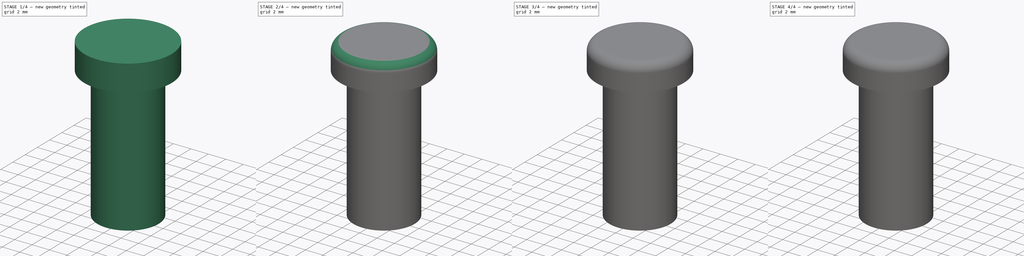
[diagram: build sequence overview — one tinted view per stage of 4, left to right]
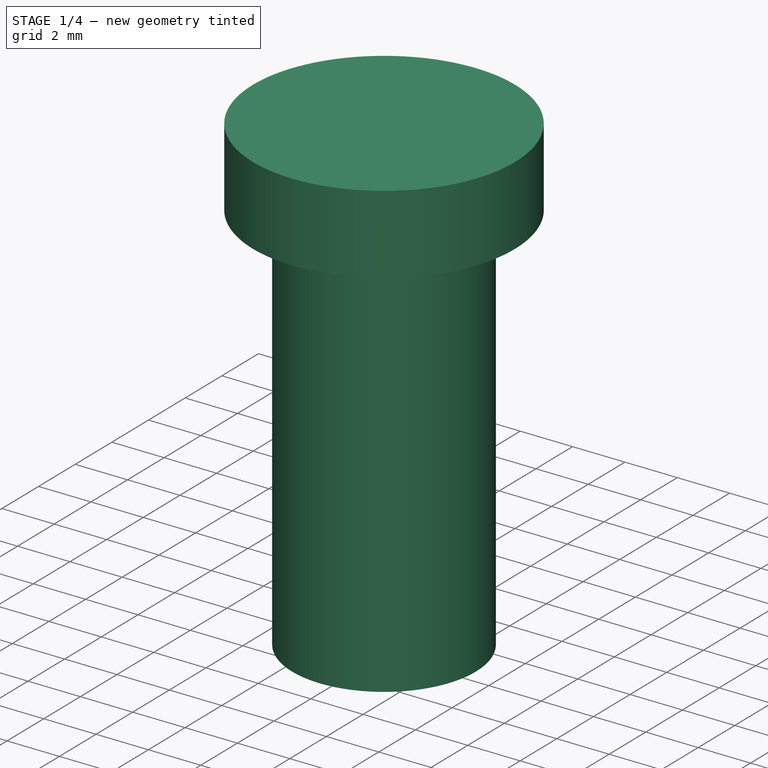
[diagram: stage 1 of 4 — iso view after this stage's code; geometry added in this stage tinted green]
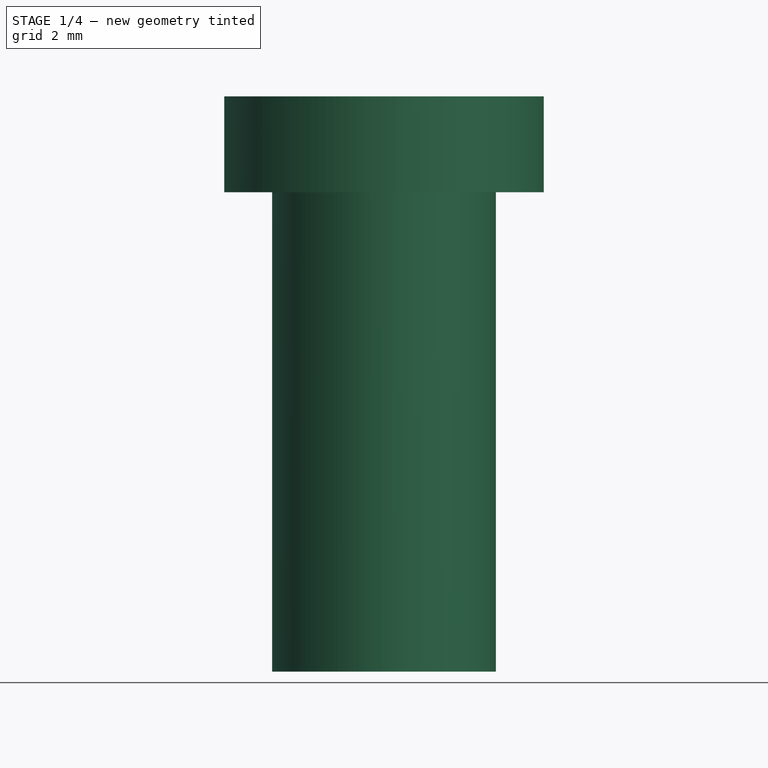
[diagram: stage 1 of 4 — front view after this stage's code; geometry added in this stage tinted green]
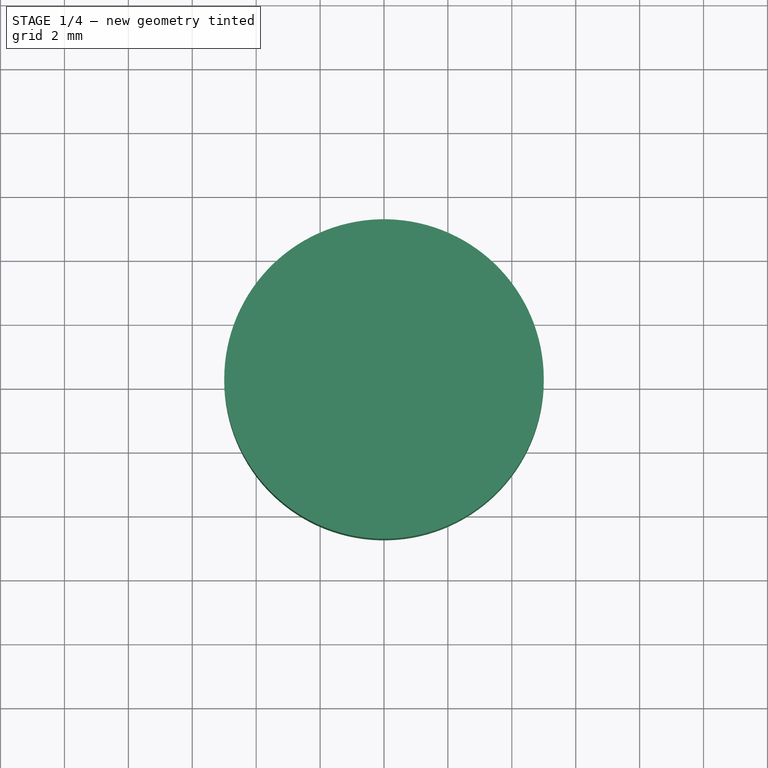
[diagram: stage 1 of 4 — top view after this stage's code; geometry added in this stage tinted green]
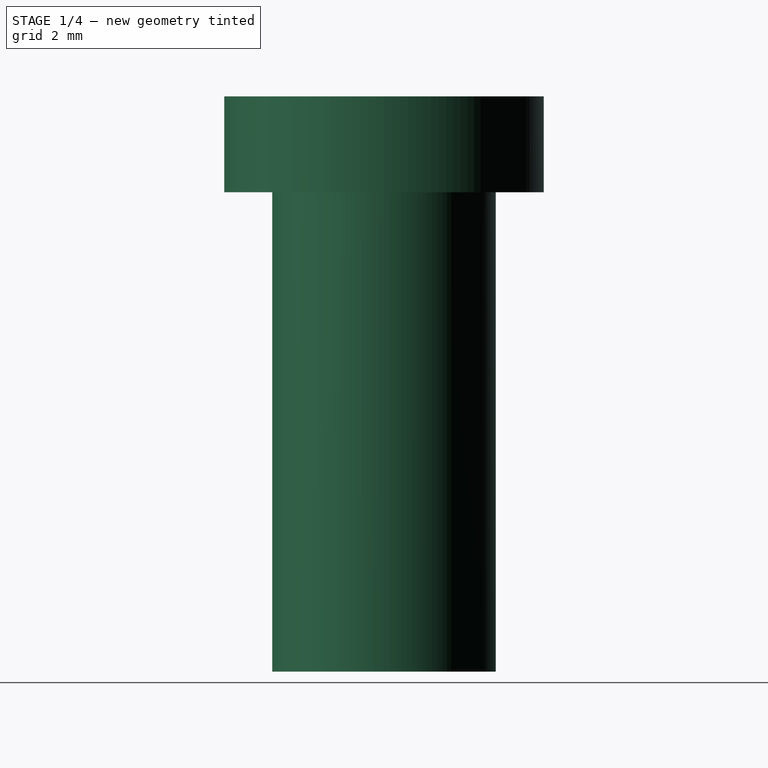
[diagram: stage 1 of 4 — right view after this stage's code; geometry added in this stage tinted green]
FCSTD DOCUMENT  (FreeCAD 0.18R4 (GitTag))
Label: Button
License: All rights reserved
LicenseURL: http://en.wikipedia.org/wiki/All_rights_reserved
objects: Sketcher::SketchObject×8, PartDesign::Body×5, PartDesign::Pocket×4, PartDesign::FeatureBase×4, PartDesign::Pad×2, PartDesign::Fillet×1, PartDesign::PolarPattern×1, Image::ImagePlane×1
note: 31 computed .brp shape members not serialized (recipe doc carries the construction recipe); baked Part::Feature solids carry a one-line shape summary decoded from their .brp

FEATURE [Sketcher::SketchObject] Sketch
  MapMode = 5
  Support = -> [XY_Plane]
  sketch-geometry (1):
    g0: Circle CenterX=0 CenterY=0 CenterZ=0 NormalX=0 NormalY=0 NormalZ=1 AngleXU=0 Radius=3.5
  constraints (1):
    c: Coincident(g0,g-1)
FEATURE [PartDesign::Pad] Pad
  Length = 15
  Length2 = 100
  Profile = -> Sketch
  Type = 0
FEATURE [Sketcher::SketchObject] Sketch001
  MapMode = 5
  Placement = pos=(0,0,0) rot=(1,0,0;3.14159rad)
  Support = -> [Pad]
  sketch-geometry (1):
    g0: Circle CenterX=0 CenterY=0 CenterZ=0 NormalX=0 NormalY=0 NormalZ=1 AngleXU=0 Radius=1.8
  constraints (1):
    c: Coincident(g0,g-1)
FEATURE [PartDesign::Pocket] Pocket
  BaseFeature = -> Pad
  Length = 3
  Length2 = 100
  Profile = -> Sketch001
  Type = 0
FEATURE [Sketcher::SketchObject] Sketch002
  MapMode = 5
  Placement = pos=(0,0,15) rot=(0,0,1;0rad)
  Support = -> [Pocket]
  sketch-geometry (1):
    g0: Circle CenterX=0 CenterY=0 CenterZ=0 NormalX=0 NormalY=0 NormalZ=1 AngleXU=0 Radius=5
  constraints (1):
    c: PointOnObject(g0,g-2)
FEATURE [PartDesign::Pad] Pad001
  BaseFeature = -> Pocket
  Length = 3
  Length2 = 100
  Profile = -> Sketch002
  Type = 0
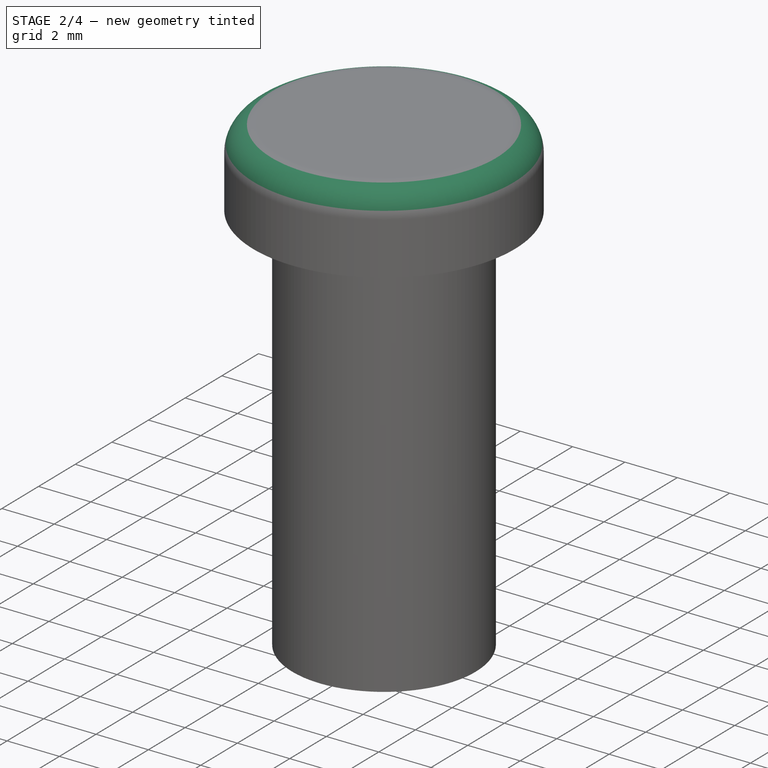
[diagram: stage 2 of 4 — iso view after this stage's code; geometry added in this stage tinted green]
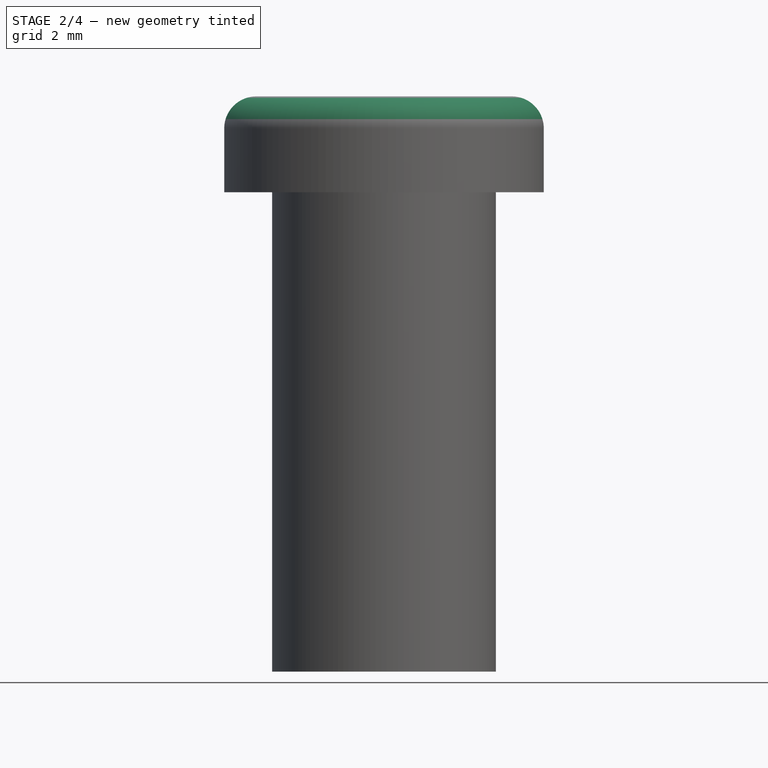
[diagram: stage 2 of 4 — front view after this stage's code; geometry added in this stage tinted green]
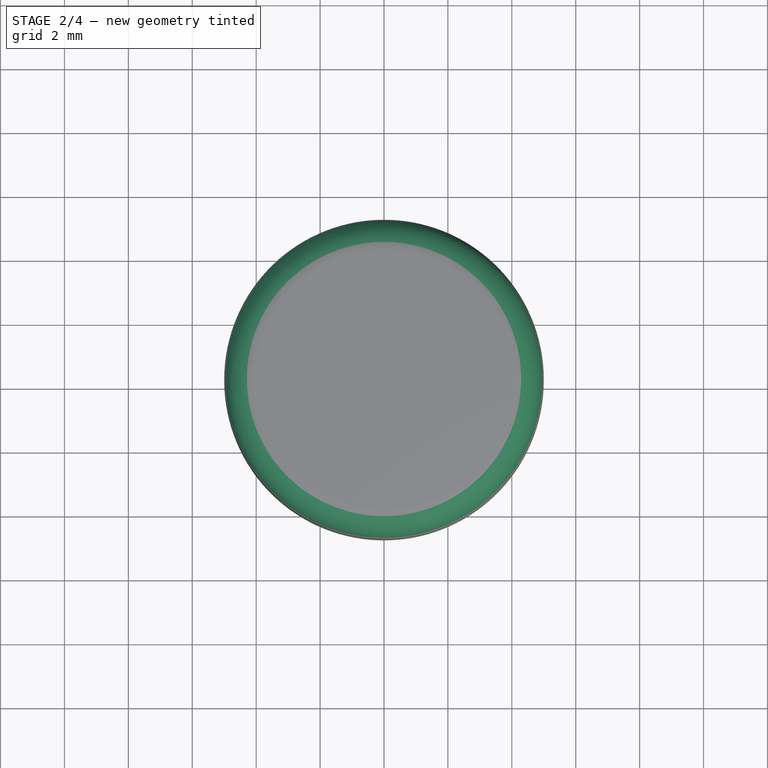
[diagram: stage 2 of 4 — top view after this stage's code; geometry added in this stage tinted green]
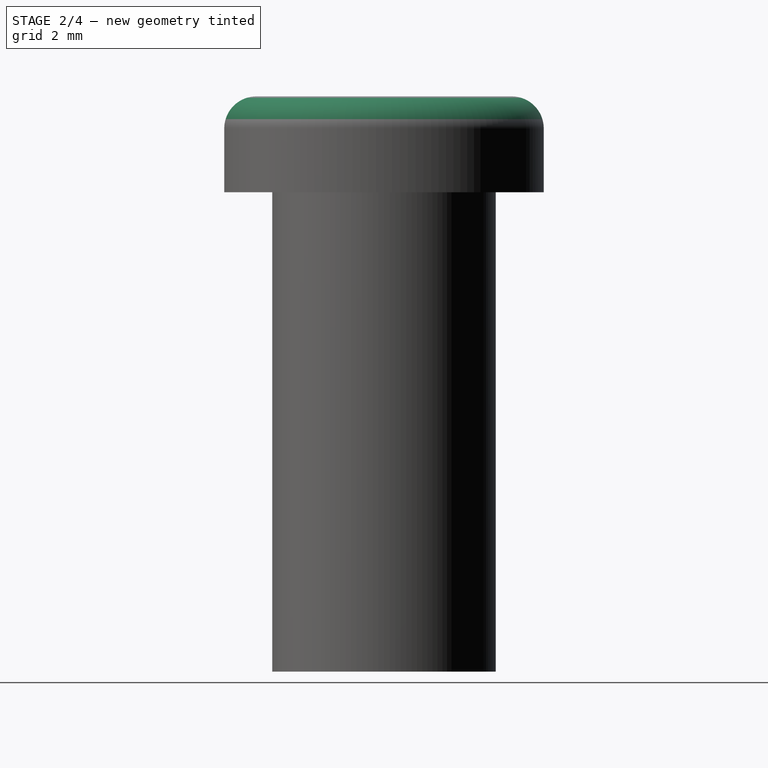
[diagram: stage 2 of 4 — right view after this stage's code; geometry added in this stage tinted green]
FEATURE [PartDesign::Fillet] Fillet
  Base = -> Pad001 [Edge3]
  BaseFeature = -> Pad001
  Radius = 1
FEATURE [PartDesign::Body] Body001  label="TlacitkoMute"
  BaseFeature = -> Body
  Group = -> [Clone,Sketch005,Pocket003]
  Origin = -> Origin001
  Placement = pos=(15,0,0) rot=(0,0,1;0rad)
  Tip = -> Pocket003
FEATURE [PartDesign::FeatureBase] Clone002
  BaseFeature = -> Body
FEATURE [PartDesign::Body] Body003  label="TlacitkoPause"
  BaseFeature = -> Body
  Group = -> [Clone002]
  Origin = -> Origin003
  Placement = pos=(-20,0,0) rot=(0,0,1;0rad)
  Tip = -> Clone002
FEATURE [PartDesign::FeatureBase] Clone003
  BaseFeature = -> Body
FEATURE [Image::ImagePlane] ImagePlane
  Placement = pos=(-35,0.4,18) rot=(0,0,1;0rad)
  XSize = 6
  YSize = 6
FEATURE [Sketcher::SketchObject] Sketch007
  MapMode = 5
  Placement = pos=(0,0,18) rot=(0,0,1;0rad)
  Support = -> [Clone003]
  sketch-geometry (12):
    g0: LineSegment StartX=-2.2 StartY=-2.6 StartZ=0 EndX=-0.6 EndY=-2.6 EndZ=0
    g1: LineSegment StartX=-0.6 StartY=-2.6 StartZ=0 EndX=-0.6 EndY=-1 EndZ=0
    g2: LineSegment StartX=-0.6 StartY=-1 StartZ=0 EndX=0.6 EndY=-1 EndZ=0
    g3: LineSegment StartX=0.6 StartY=-1 StartZ=0 EndX=0.6 EndY=-2.6 EndZ=0
    g4: LineSegment StartX=0.6 StartY=-2.6 StartZ=0 EndX=2.2 EndY=-2.6 EndZ=0
    g5: LineSegment StartX=2.2 StartY=-2.6 StartZ=0 EndX=2.2 EndY=0.2 EndZ=0
    g6: LineSegment StartX=2.2 StartY=0.2 StartZ=0 EndX=3.2 EndY=0.2 EndZ=0
    g7: LineSegment StartX=3.2 StartY=0.2 StartZ=0 EndX=0 EndY=3.4 EndZ=0
    g8: LineSegment StartX=-0.6 StartY=-2.6 StartZ=0 EndX=-2.2 EndY=-2.6 EndZ=0
    g9: LineSegment StartX=-2.2 StartY=-2.6 StartZ=0 EndX=-2.2 EndY=0.2 EndZ=0
    g10: LineSegment StartX=-2.2 StartY=0.2 StartZ=0 EndX=-3.2 EndY=0.2 EndZ=0
    g11: LineSegment StartX=-3.2 StartY=0.2 StartZ=0 EndX=0 EndY=3.4 EndZ=0
  constraints (20):
    c: Horizontal(g0)
    c: Coincident(g0,g1)
    c: Vertical(g1)
    c: Coincident(g1,g2)
    c: Horizontal(g2)
    c: Coincident(g2,g3)
    c: Vertical(g3)
    c: Coincident(g3,g4)
    c: Horizontal(g4)
    c: Coincident(g4,g5)
    c: Vertical(g5)
    c: Coincident(g5,g6)
    c: Horizontal(g6)
    c: Coincident(g6,g7)
    c: Horizontal(g8)
    c: Coincident(g8,g9)
    c: Vertical(g9)
    c: Coincident(g9,g10)
    c: Horizontal(g10)
    c: Coincident(g10,g11)
FEATURE [Sketcher::SketchObject] Sketch006
  MapMode = 5
  Placement = pos=(0,0,18) rot=(0,0,1;0rad)
  Support = -> [Clone003]
FEATURE [PartDesign::Body] Body004  label="TlacitkoHome"
  BaseFeature = -> Body
  Group = -> [Clone003,Sketch006,Sketch007]
  Origin = -> Origin004
  Placement = pos=(-35,0,0) rot=(0,0,1;0rad)
  Tip = -> Clone003
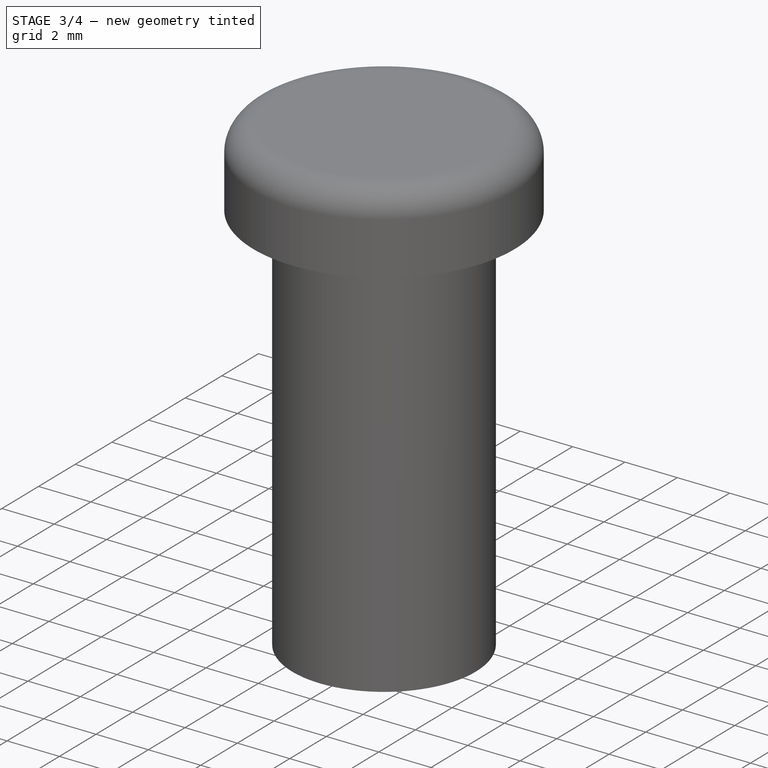
[diagram: stage 3 of 4 — iso view after this stage's code; geometry added in this stage tinted green]
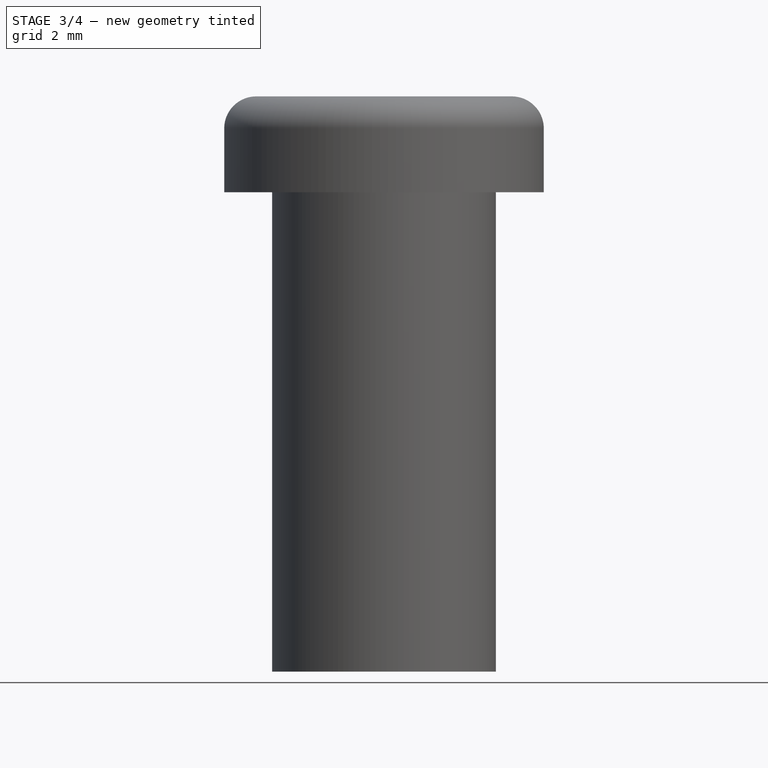
[diagram: stage 3 of 4 — front view after this stage's code; geometry added in this stage tinted green]
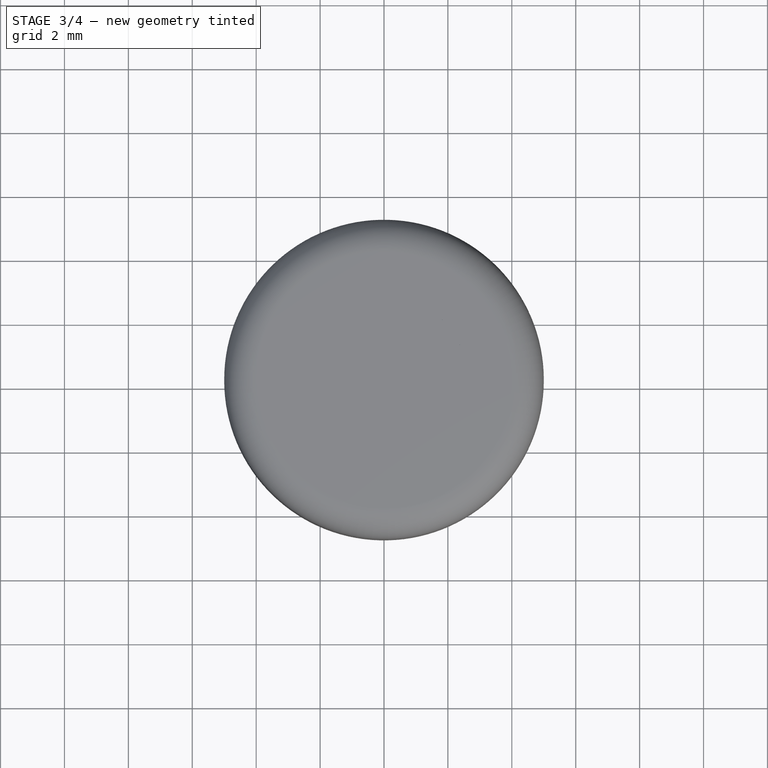
[diagram: stage 3 of 4 — top view after this stage's code; geometry added in this stage tinted green]
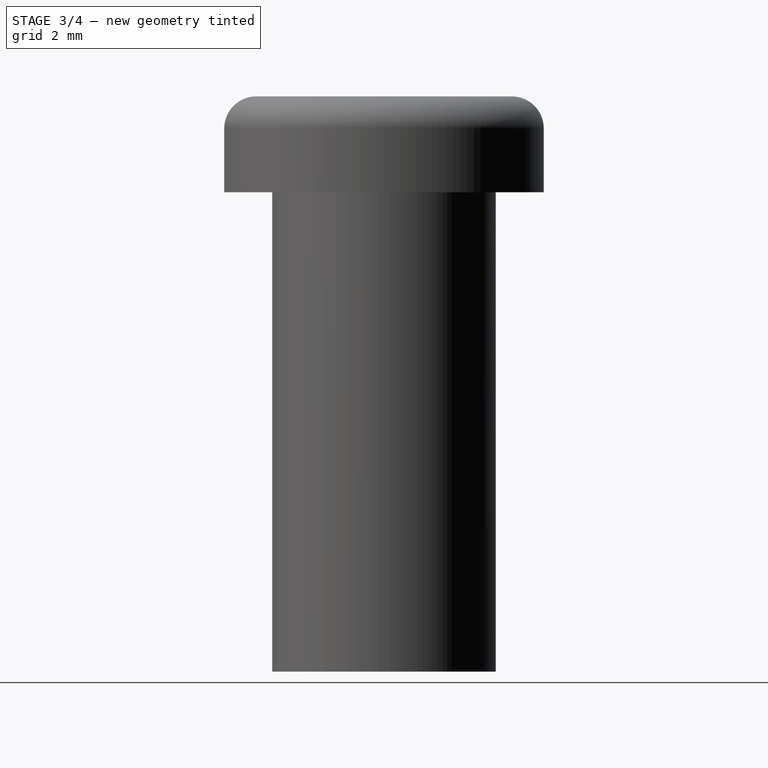
[diagram: stage 3 of 4 — right view after this stage's code; geometry added in this stage tinted green]
FEATURE [PartDesign::Body] Body  label="ZákladTlačítka"
  Group = -> [Sketch,Pad,Sketch001,Pocket,Sketch002,Pad001,Fillet]
  Origin = -> Origin
  Tip = -> Fillet
FEATURE [PartDesign::FeatureBase] Clone
  BaseFeature = -> Body
FEATURE [PartDesign::FeatureBase] Clone001
  BaseFeature = -> Body
FEATURE [PartDesign::Body] Body002  label="TlacitkoJas"
  BaseFeature = -> Body
  Group = -> [Clone001,Sketch003,Sketch004,Pocket001,Pocket002,PolarPattern]
  Origin = -> Origin002
  Tip = -> PolarPattern
FEATURE [Sketcher::SketchObject] Sketch005
  MapMode = 5
  Placement = pos=(0,0,18) rot=(0,0,1;0rad)
  Support = -> [Clone]
  sketch-geometry (10):
    g0: LineSegment StartX=-3 StartY=1 StartZ=0 EndX=-3 EndY=-1 EndZ=0
    g1: LineSegment StartX=-3 StartY=-1 StartZ=0 EndX=-1.5 EndY=-1 EndZ=0
    g2: LineSegment StartX=-1.5 StartY=-1 StartZ=0 EndX=0.5 EndY=-2.5 EndZ=0
    g3: LineSegment StartX=0.5 StartY=-2.5 StartZ=0 EndX=0.5 EndY=2.5 EndZ=0
    g4: LineSegment StartX=0.5 StartY=2.5 StartZ=0 EndX=-1.5 EndY=1 EndZ=0
    g5: LineSegment StartX=-1.5 StartY=1 StartZ=0 EndX=-3 EndY=1 EndZ=0
    g6: ArcOfCircle CenterX=0 CenterY=0 CenterZ=0 NormalX=0 NormalY=0 NormalZ=1 AngleXU=0 Radius=2.60613 StartAngle=5.37754 EndAngle=7.18884
    g7: ArcOfCircle CenterX=-0.5 CenterY=0 CenterZ=0 NormalX=0 NormalY=0 NormalZ=1 AngleXU=0 Radius=2.24406 StartAngle=5.52537 EndAngle=7.041
    g8: LineSegment StartX=1.60844 StartY=2.05057 StartZ=0 EndX=1.12995 EndY=1.54242 EndZ=0
    g9: LineSegment StartX=1.60844 StartY=-2.05057 StartZ=0 EndX=1.12995 EndY=-1.54242 EndZ=0
  constraints (16):
    c: Vertical(g0)
    c: Coincident(g0,g1)
    c: Horizontal(g1)
    c: Coincident(g1,g2)
    c: Coincident(g2,g3)
    c: Vertical(g3)
    c: Coincident(g3,g4)
    c: Coincident(g4,g5)
    c: Coincident(g5,g0)
    c: Horizontal(g5)
    c: PointOnObject(g6,g-1)
    c: PointOnObject(g7,g-1)
    c: Coincident(g8,g6)
    c: Coincident(g8,g7)
    c: Coincident(g9,g6)
    c: Coincident(g9,g7)
FEATURE [PartDesign::Pocket] Pocket003
  BaseFeature = -> Clone
  Length = 0.5
  Length2 = 100
  Profile = -> Sketch005
  Type = 0
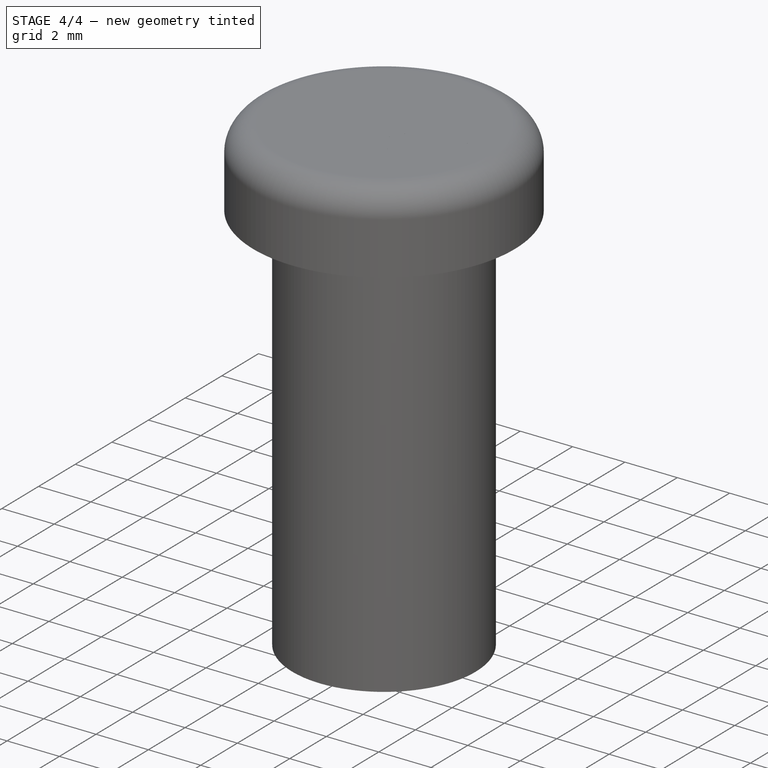
[diagram: stage 4 of 4 — iso view after this stage's code; geometry added in this stage tinted green]
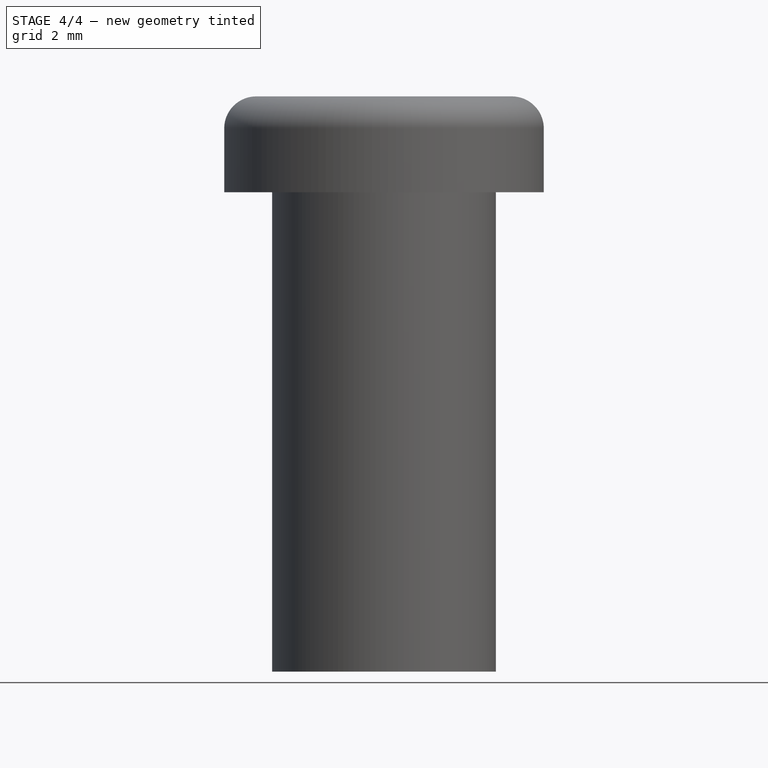
[diagram: stage 4 of 4 — front view after this stage's code; geometry added in this stage tinted green]
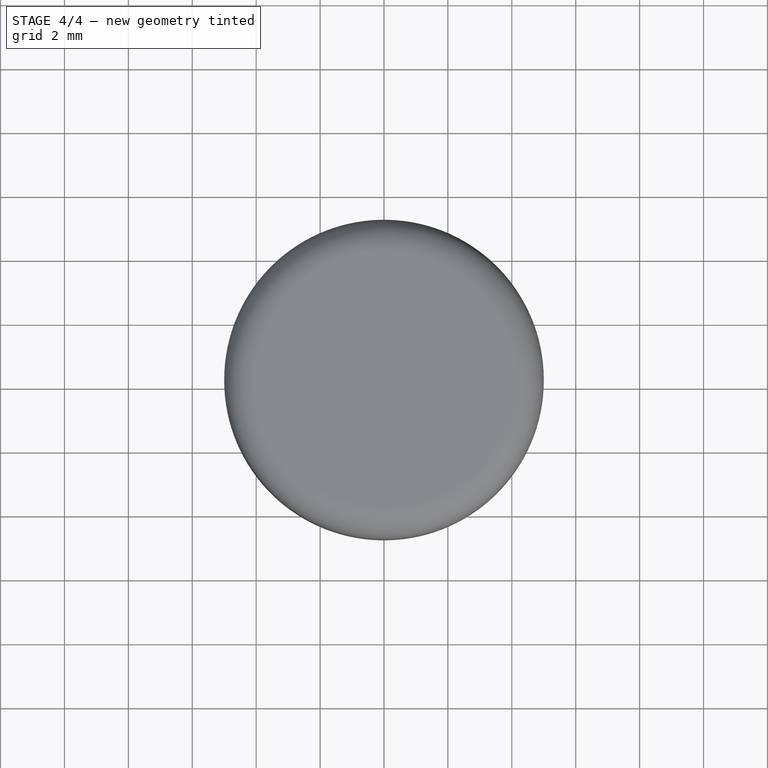
[diagram: stage 4 of 4 — top view after this stage's code; geometry added in this stage tinted green]
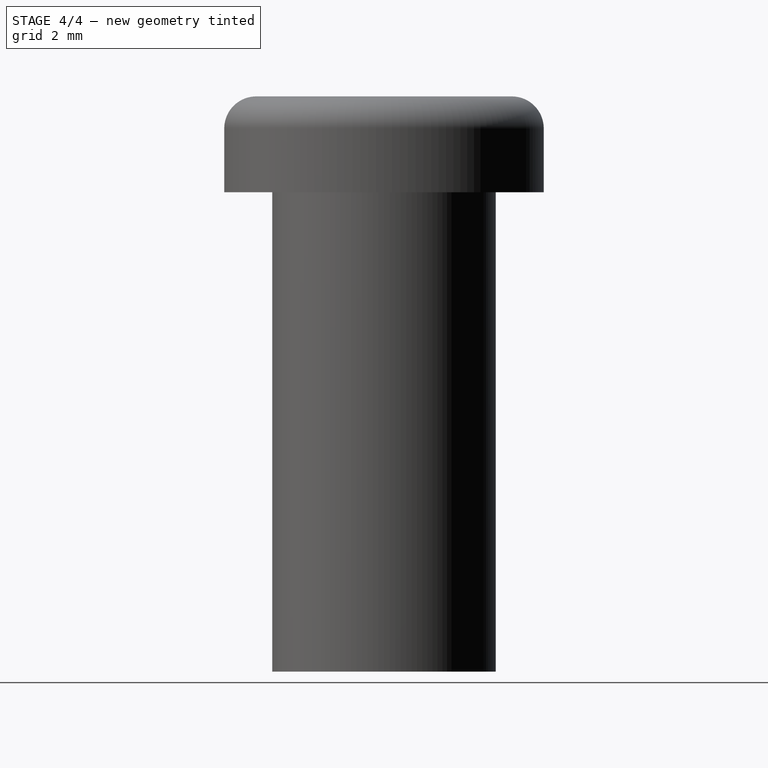
[diagram: stage 4 of 4 — right view after this stage's code; geometry added in this stage tinted green]
FEATURE [Sketcher::SketchObject] Sketch003
  MapMode = 5
  Placement = pos=(0,0,18) rot=(0,0,1;0rad)
  Support = -> [Clone001]
  sketch-geometry (2):
    g0: Circle CenterX=0 CenterY=0 CenterZ=0 NormalX=0 NormalY=0 NormalZ=1 AngleXU=0 Radius=1
    g1: Circle CenterX=0 CenterY=0 CenterZ=0 NormalX=0 NormalY=0 NormalZ=1 AngleXU=0 Radius=1.5
  constraints (2):
    c: Coincident(g0,g-1)
    c: Coincident(g1,g0)
FEATURE [Sketcher::SketchObject] Sketch004
  MapMode = 5
  Placement = pos=(0,0,18) rot=(0,0,1;0rad)
  Support = -> [Clone001]
  sketch-geometry (4):
    g0: LineSegment StartX=1.8 StartY=0.3 StartZ=0 EndX=1.8 EndY=-0.3 EndZ=0
    g1: LineSegment StartX=1.8 StartY=0.3 StartZ=0 EndX=3 EndY=0.3 EndZ=0
    g2: LineSegment StartX=1.8 StartY=-0.3 StartZ=0 EndX=3 EndY=-0.3 EndZ=0
    g3: ArcOfCircle CenterX=3 CenterY=0 CenterZ=0 NormalX=0 NormalY=0 NormalZ=1 AngleXU=0 Radius=0.3 StartAngle=4.71239 EndAngle=7.85398
  constraints (8):
    c: Vertical(g0)
    c: Coincident(g0,g1)
    c: Horizontal(g1)
    c: Coincident(g0,g2)
    c: Horizontal(g2)
    c: PointOnObject(g3,g-1)
    c: Coincident(g3,g1)
    c: Coincident(g3,g2)
FEATURE [PartDesign::Pocket] Pocket001
  BaseFeature = -> Clone001
  Length = 0.5
  Length2 = 100
  Profile = -> Sketch003
  Type = 0
FEATURE [PartDesign::Pocket] Pocket002
  BaseFeature = -> Pocket001
  Length = 0.5
  Length2 = 100
  Profile = -> Sketch004
  Type = 0
FEATURE [PartDesign::PolarPattern] PolarPattern
  Angle = 360
  Axis = -> Z_Axis002
  BaseFeature = -> Pocket002
  Occurrences = 8
  Originals = -> [Pocket002]
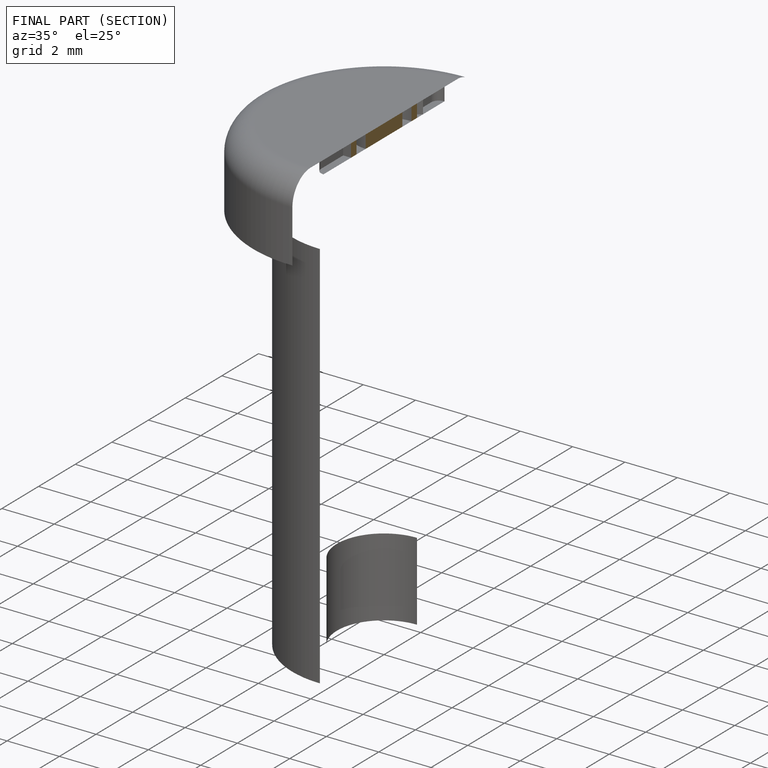
[diagram: finished part — half-section view (interior)]
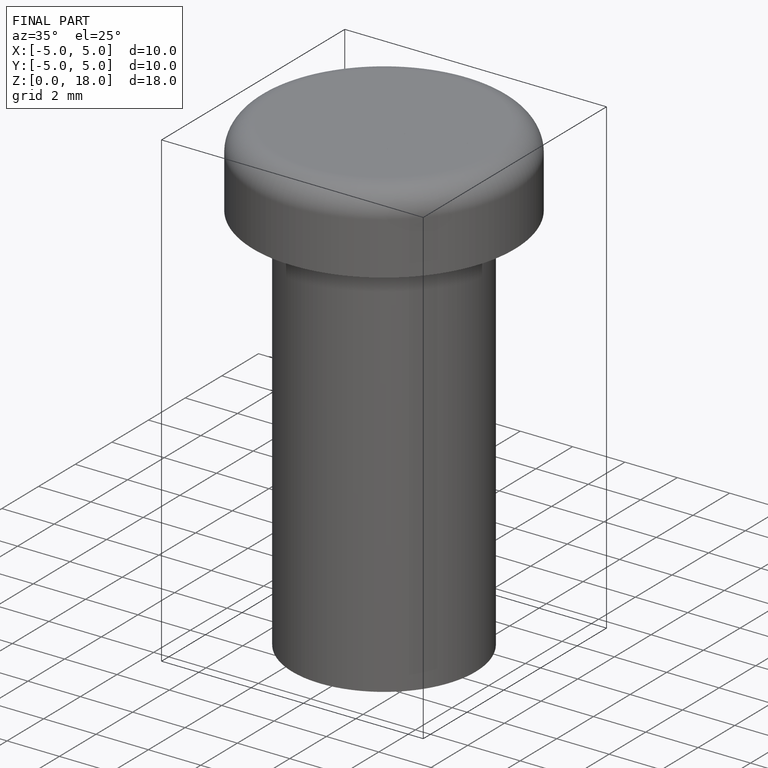
[diagram: finished part — iso view with bounding-box wireframe]
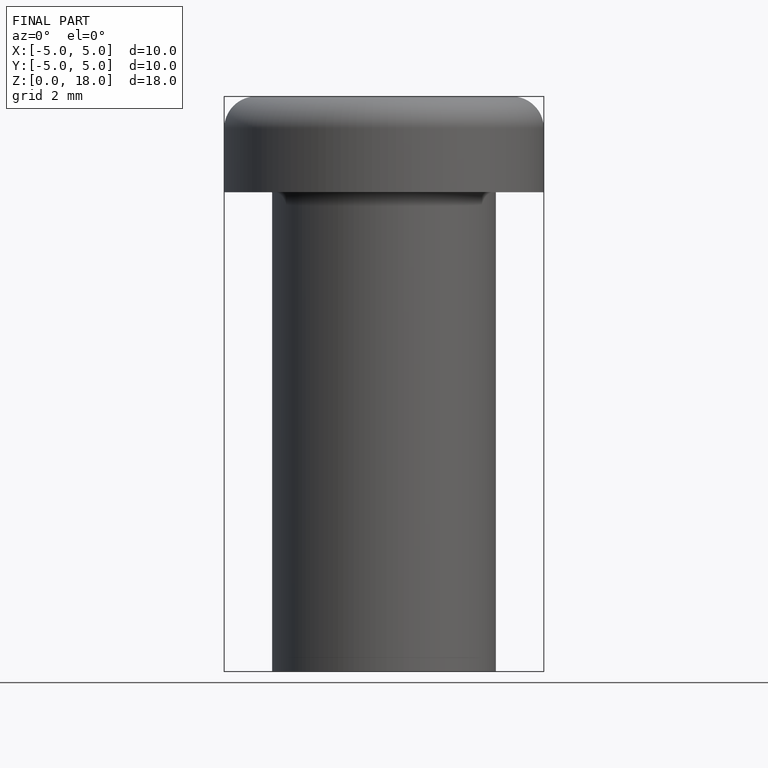
[diagram: finished part — front view with bounding-box wireframe]
